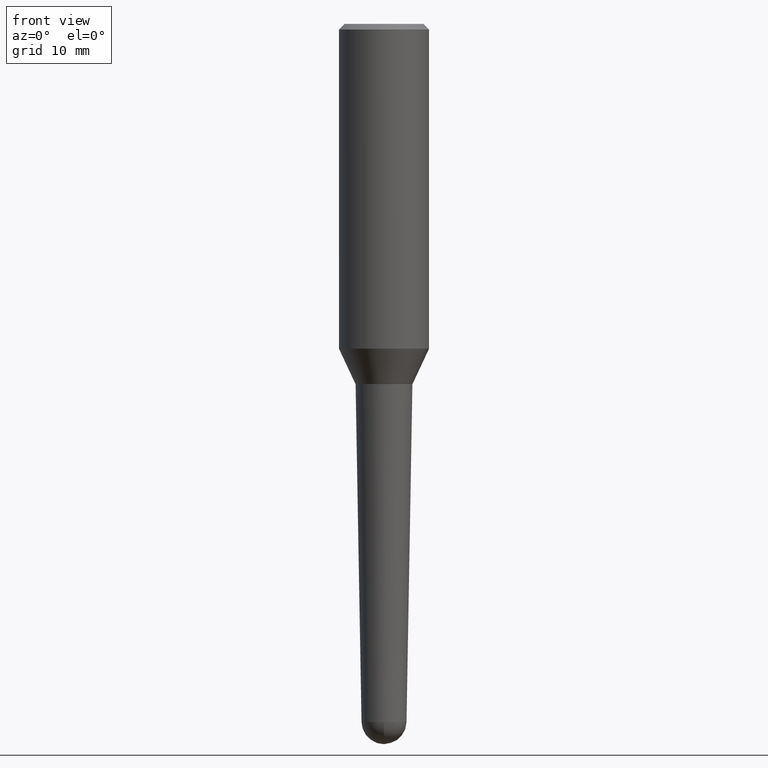
[diagram: clean part render]
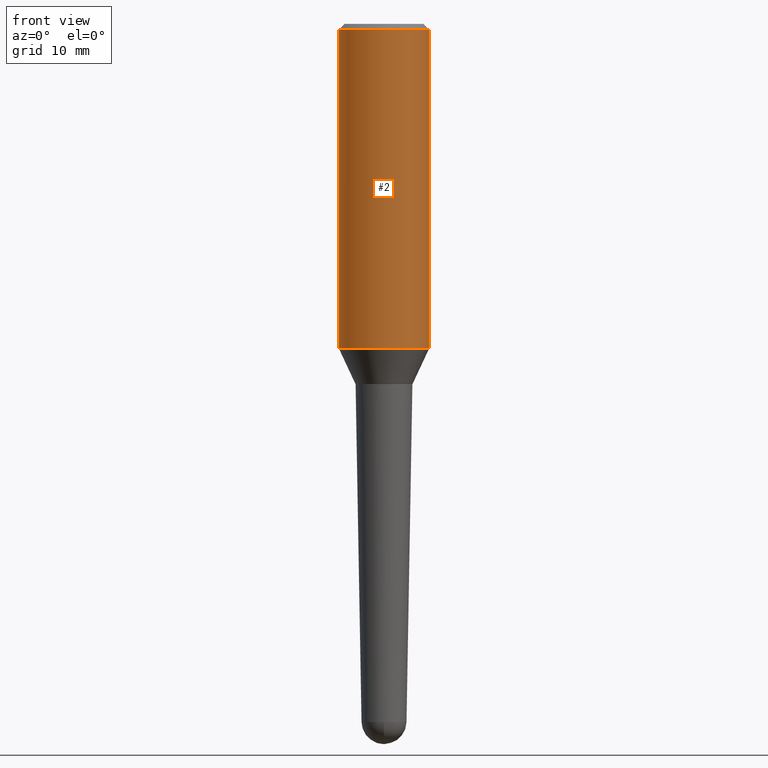
[diagram: same view with one face highlighted and labeled with its STEP entity id]
A machine part, front view. The second image highlights one B-rep face of the part: STEP entity #2.
In plain terms, the highlighted cylindrical surface (partial cylindrical patch) has radius 6.35 mm, axis along (-0, 0, 1).
Its self-contained STEP definition (entity closure, byte-faithful):
#2 = ADVANCED_FACE ( 'NONE', ( #394 ), #109, .T. ) ;
#34 = CARTESIAN_POINT ( 'NONE',  ( -0.2500000000000000000, -1.427178414605506576E-15, -0.03125000000000005551 ) ) ;
#42 = DIRECTION ( 'NONE',  ( 1.000000000000000000, -6.982962677686267499E-15, 4.852736867747363965E-29 ) ) ;
#43 = AXIS2_PLACEMENT_3D ( 'NONE', #399, #77, #42 ) ;
#45 = VERTEX_POINT ( 'NONE', #292 ) ;
#59 = CARTESIAN_POINT ( 'NONE',  ( 7.642090019328565002E-31, -1.091087918388484967E-16, -0.03125000000000005551 ) ) ;
#77 = DIRECTION ( 'NONE',  ( -2.445468806185136597E-29, 3.491481338843145583E-15, 1.000000000000000000 ) ) ;
#78 = CARTESIAN_POINT ( 'NONE',  ( 0.2500000000000001110, -1.745740669421565494E-15, 5.931196827434418047E-16 ) ) ;
#83 = VERTEX_POINT ( 'NONE', #135 ) ;
#96 = DIRECTION ( 'NONE',  ( -2.445468806185136597E-29, 3.491481338843145583E-15, 1.000000000000000000 ) ) ;
#106 = DIRECTION ( 'NONE',  ( -2.445468806185136597E-29, 3.491481338843145583E-15, 1.000000000000000000 ) ) ;
#109 = CYLINDRICAL_SURFACE ( 'NONE', #43, 0.2500000000000001110 ) ;
#133 = AXIS2_PLACEMENT_3D ( 'NONE', #138, #106, #249 ) ;
#135 = CARTESIAN_POINT ( 'NONE',  ( 0.2500000000000000000, -1.854849461260415384E-15, -0.03125000000000005551 ) ) ;
#136 = EDGE_CURVE ( 'NONE', #390, #83, #385, .T. ) ;
#137 = CARTESIAN_POINT ( 'NONE',  ( -0.2500000000000002220, -4.521604876772416489E-15, -1.803807927055801397 ) ) ;
#138 = CARTESIAN_POINT ( 'NONE',  ( 4.411156017964436703E-29, -6.297961716172668531E-15, -1.803807927055801397 ) ) ;
#165 = AXIS2_PLACEMENT_3D ( 'NONE', #59, #96, #379 ) ;
#173 = EDGE_LOOP ( 'NONE', ( #335, #182, #226, #297 ) ) ;
#182 = ORIENTED_EDGE ( 'NONE', *, *, #381, .T. ) ;
#192 = VECTOR ( 'NONE', #331, 39.37007874015748143 ) ;
#226 = ORIENTED_EDGE ( 'NONE', *, *, #272, .T. ) ;
#229 = LINE ( 'NONE', #299, #192 ) ;
#249 = DIRECTION ( 'NONE',  ( 1.000000000000000000, -6.982962677686268288E-15, 0.000000000000000000 ) ) ;
#272 = EDGE_CURVE ( 'NONE', #45, #83, #456, .T. ) ;
#292 = CARTESIAN_POINT ( 'NONE',  ( 0.2500000000000002220, -8.043702385594237575E-15, -1.803807927055801397 ) ) ;
#297 = ORIENTED_EDGE ( 'NONE', *, *, #136, .F. ) ;
#299 = CARTESIAN_POINT ( 'NONE',  ( -0.2500000000000001110, 1.776356839400253620E-15, 5.931196827434174486E-16 ) ) ;
#315 = VECTOR ( 'NONE', #323, 39.37007874015748143 ) ;
#323 = DIRECTION ( 'NONE',  ( -2.445468806185136877E-29, 3.491481338843145188E-15, 1.000000000000000000 ) ) ;
#331 = DIRECTION ( 'NONE',  ( -2.445468806185136877E-29, 3.491481338843145188E-15, 1.000000000000000000 ) ) ;
#335 = ORIENTED_EDGE ( 'NONE', *, *, #441, .F. ) ;
#349 = CIRCLE ( 'NONE', #133, 0.2500000000000002220 ) ;
#364 = VERTEX_POINT ( 'NONE', #137 ) ;
#379 = DIRECTION ( 'NONE',  ( 1.000000000000000000, -6.982962677686266711E-15, 0.000000000000000000 ) ) ;
#381 = EDGE_CURVE ( 'NONE', #364, #45, #349, .T. ) ;
#385 = CIRCLE ( 'NONE', #165, 0.2500000000000000000 ) ;
#390 = VERTEX_POINT ( 'NONE', #34 ) ;
#394 = FACE_OUTER_BOUND ( 'NONE', #173, .T. ) ;
#399 = CARTESIAN_POINT ( 'NONE',  ( -1.450455682483482035E-44, 2.070866303999251778E-30, 5.931196827434296760E-16 ) ) ;
#441 = EDGE_CURVE ( 'NONE', #364, #390, #229, .T. ) ;
#456 = LINE ( 'NONE', #78, #315 ) ;